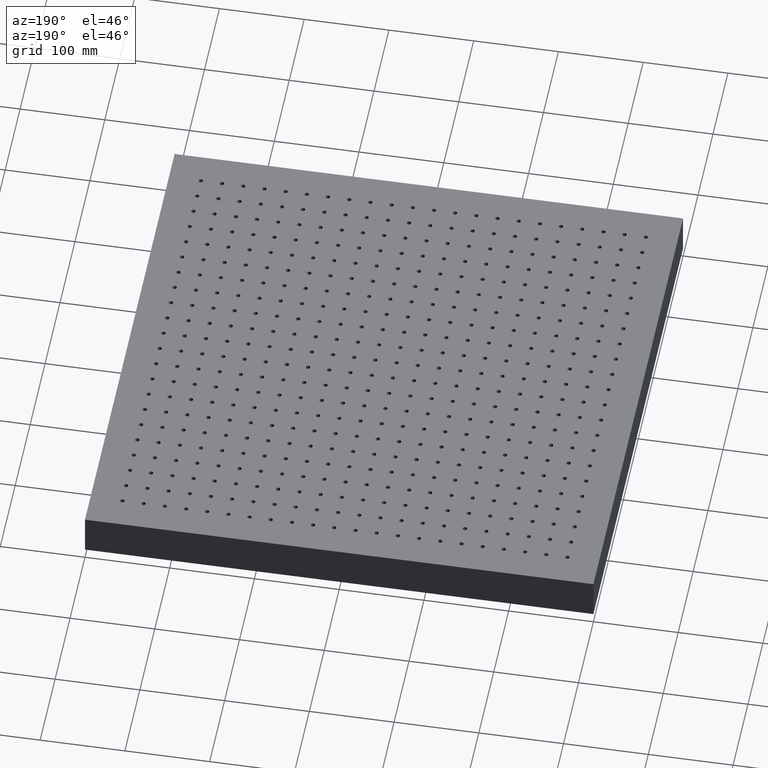
[diagram: clean part render]
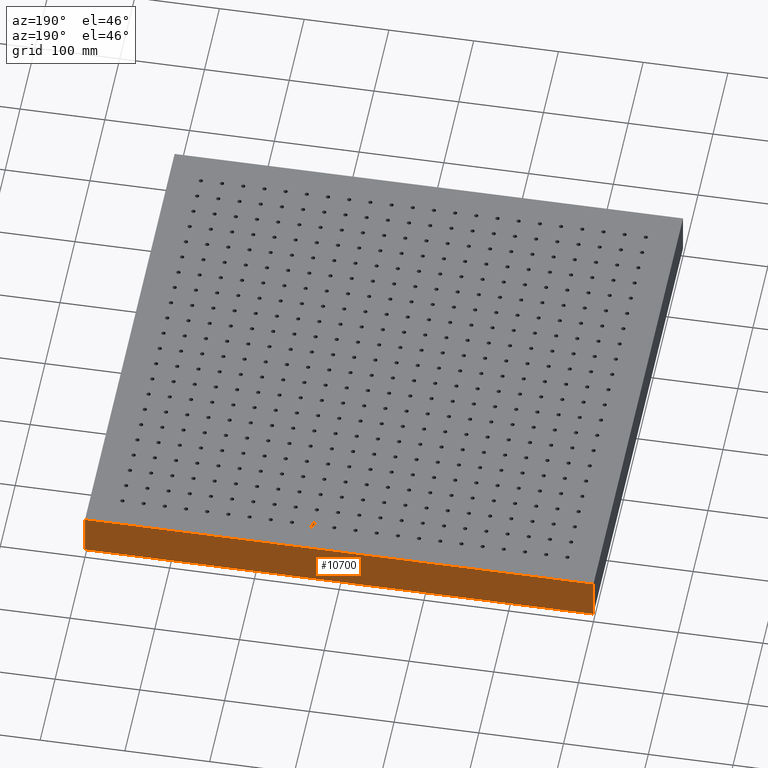
[diagram: same view with one face highlighted and labeled with its STEP entity id]
A machine part, auxiliary view. The second image highlights one B-rep face of the part: STEP entity #10700.
In plain terms, the highlighted planar face has unit normal (0, -1, 0).
Its self-contained STEP definition (entity closure, byte-faithful):
#426 = CARTESIAN_POINT ( 'NONE',  ( -300.0000000000000600, 299.9999999999999400, 0.0000000000000000000 ) ) ;
#2133 = LINE ( 'NONE', #27608, #30740 ) ;
#2156 = AXIS2_PLACEMENT_3D ( 'NONE', #35301, #13345, #32705 ) ;
#3075 = LINE ( 'NONE', #19169, #16949 ) ;
#3870 = ORIENTED_EDGE ( 'NONE', *, *, #32937, .F. ) ;
#6189 = EDGE_CURVE ( 'NONE', #13863, #13405, #9649, .T. ) ;
#7175 = DIRECTION ( 'NONE',  ( -1.000000000000000000, -0.0000000000000000000, -0.0000000000000000000 ) ) ;
#7374 = VERTEX_POINT ( 'NONE', #31003 ) ;
#7753 = PLANE ( 'NONE',  #2156 ) ;
#9240 = LINE ( 'NONE', #25145, #29598 ) ;
#9649 = LINE ( 'NONE', #12618, #23516 ) ;
#10700 = ADVANCED_FACE ( 'NONE', ( #32625 ), #7753, .F. ) ;
#10988 = CARTESIAN_POINT ( 'NONE',  ( -300.0000000000000600, 299.9999999999999400, 50.00000000000000000 ) ) ;
#11235 = DIRECTION ( 'NONE',  ( -0.0000000000000000000, -0.0000000000000000000, -1.000000000000000000 ) ) ;
#11366 = CARTESIAN_POINT ( 'NONE',  ( 299.9999999999999400, 299.9999999999999400, 0.0000000000000000000 ) ) ;
#12618 = CARTESIAN_POINT ( 'NONE',  ( -300.0000000000000600, 299.9999999999999400, 0.0000000000000000000 ) ) ;
#13080 = ORIENTED_EDGE ( 'NONE', *, *, #25515, .F. ) ;
#13345 = DIRECTION ( 'NONE',  ( 0.0000000000000000000, -1.000000000000000000, 0.0000000000000000000 ) ) ;
#13405 = VERTEX_POINT ( 'NONE', #426 ) ;
#13863 = VERTEX_POINT ( 'NONE', #11366 ) ;
#15036 = ORIENTED_EDGE ( 'NONE', *, *, #27796, .T. ) ;
#16949 = VECTOR ( 'NONE', #30075, 1000.000000000000000 ) ;
#19169 = CARTESIAN_POINT ( 'NONE',  ( -300.0000000000000600, 299.9999999999999400, 50.00000000000000000 ) ) ;
#19373 = DIRECTION ( 'NONE',  ( -0.0000000000000000000, -0.0000000000000000000, -1.000000000000000000 ) ) ;
#22222 = VERTEX_POINT ( 'NONE', #10988 ) ;
#23516 = VECTOR ( 'NONE', #7175, 1000.000000000000000 ) ;
#25145 = CARTESIAN_POINT ( 'NONE',  ( -300.0000000000000600, 299.9999999999999400, 50.00000000000000000 ) ) ;
#25515 = EDGE_CURVE ( 'NONE', #7374, #22222, #3075, .T. ) ;
#27608 = CARTESIAN_POINT ( 'NONE',  ( 299.9999999999999400, 299.9999999999999400, 50.00000000000000000 ) ) ;
#27794 = ORIENTED_EDGE ( 'NONE', *, *, #6189, .T. ) ;
#27796 = EDGE_CURVE ( 'NONE', #7374, #13863, #2133, .T. ) ;
#29598 = VECTOR ( 'NONE', #11235, 1000.000000000000000 ) ;
#30075 = DIRECTION ( 'NONE',  ( -1.000000000000000000, -0.0000000000000000000, -0.0000000000000000000 ) ) ;
#30740 = VECTOR ( 'NONE', #19373, 1000.000000000000000 ) ;
#31003 = CARTESIAN_POINT ( 'NONE',  ( 299.9999999999999400, 299.9999999999999400, 50.00000000000000000 ) ) ;
#31624 = EDGE_LOOP ( 'NONE', ( #27794, #3870, #13080, #15036 ) ) ;
#32625 = FACE_OUTER_BOUND ( 'NONE', #31624, .T. ) ;
#32705 = DIRECTION ( 'NONE',  ( 0.0000000000000000000, -0.0000000000000000000, -1.000000000000000000 ) ) ;
#32937 = EDGE_CURVE ( 'NONE', #22222, #13405, #9240, .T. ) ;
#35301 = CARTESIAN_POINT ( 'NONE',  ( -300.0000000000000600, 299.9999999999999400, 50.00000000000000000 ) ) ;